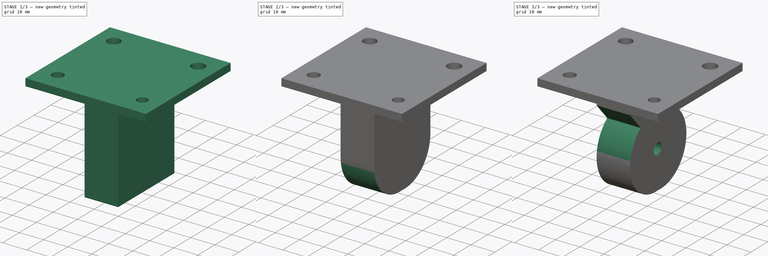
[diagram: build sequence overview — one tinted view per stage of 3, left to right]
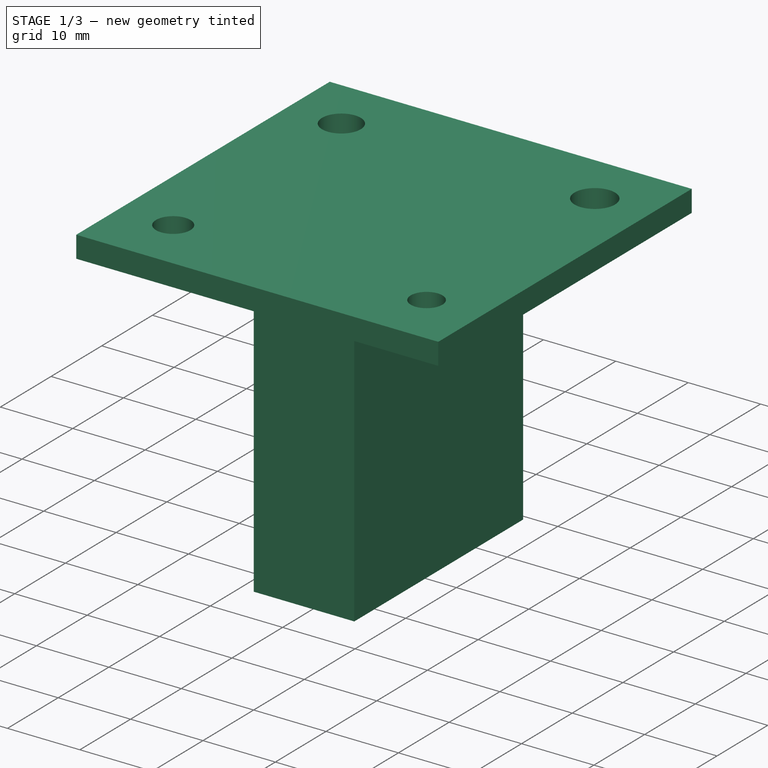
[diagram: stage 1 of 3 — iso view after this stage's code; geometry added in this stage tinted green]
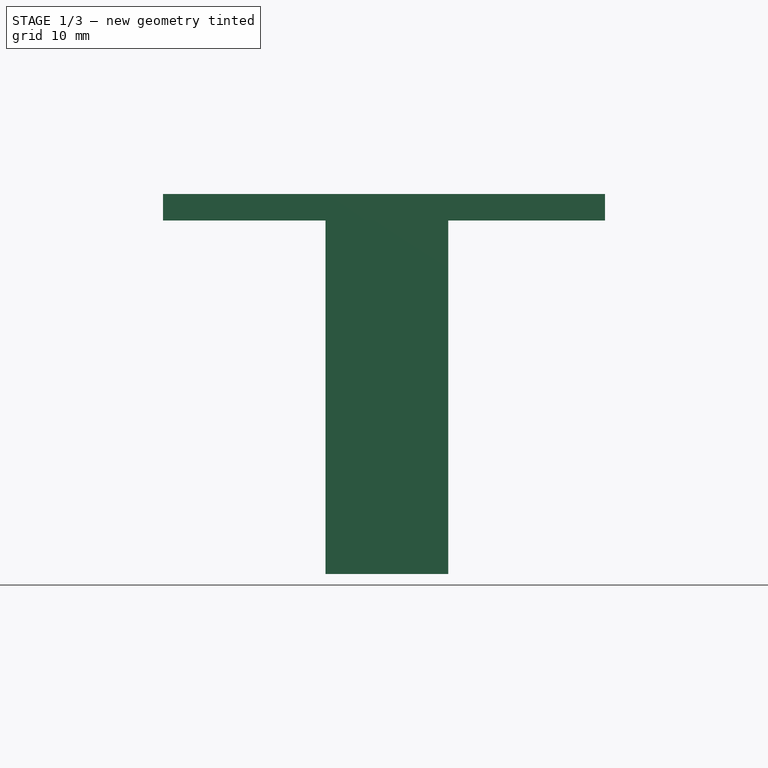
[diagram: stage 1 of 3 — front view after this stage's code; geometry added in this stage tinted green]
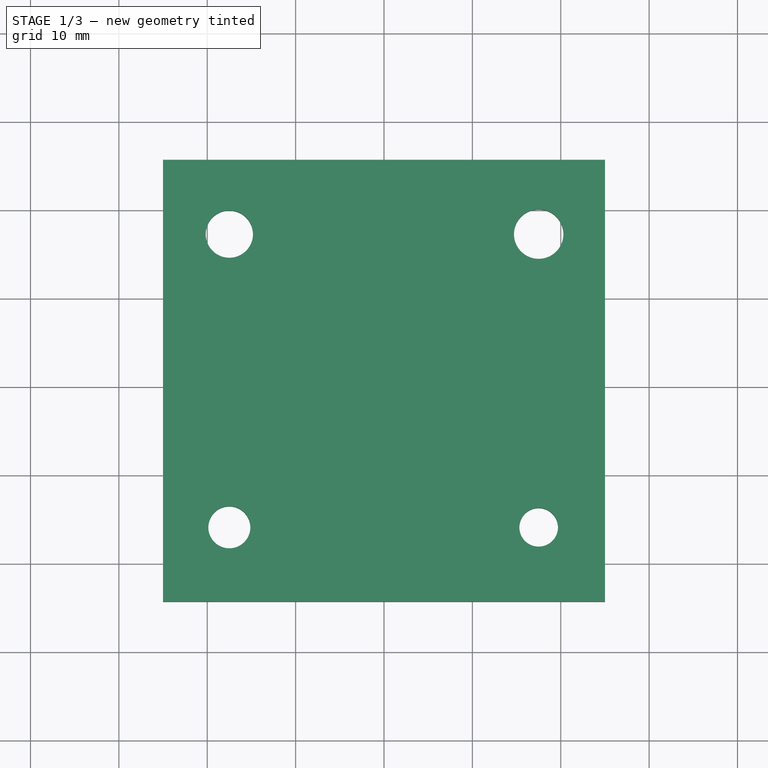
[diagram: stage 1 of 3 — top view after this stage's code; geometry added in this stage tinted green]
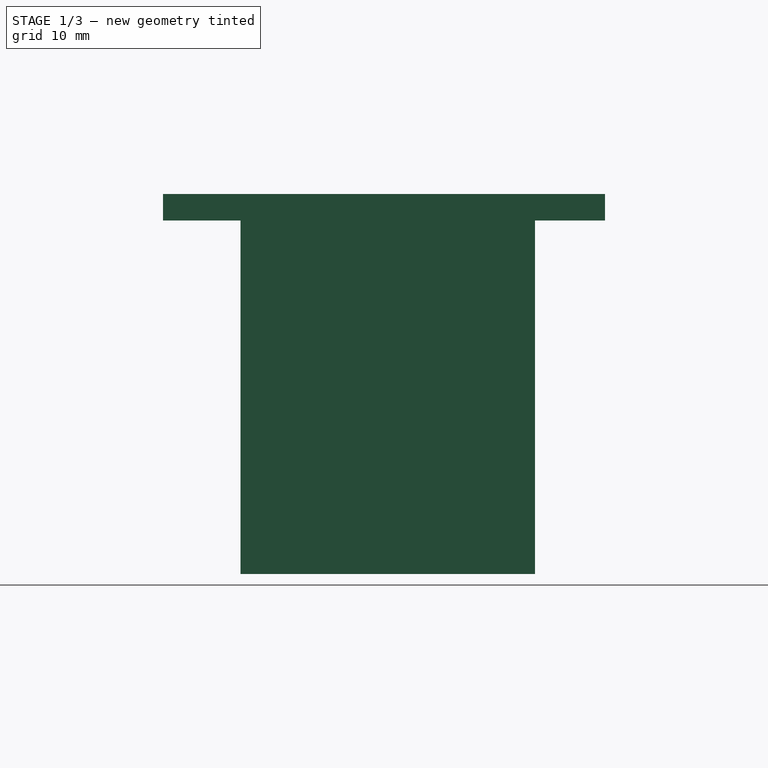
[diagram: stage 1 of 3 — right view after this stage's code; geometry added in this stage tinted green]
FCSTD DOCUMENT  (FreeCAD 0.20R29603 (Git))
Label: 1107_TrolleyWheel_30
License: All rights reserved
LicenseURL: http://en.wikipedia.org/wiki/All_rights_reserved
objects: Sketcher::SketchObject×4, PartDesign::Pad×2, PartDesign::Pocket×2, PartDesign::Fillet×1, PartDesign::Body×1
note: 15 computed .brp shape members not serialized (recipe doc carries the construction recipe); baked Part::Feature solids carry a one-line shape summary decoded from their .brp

FEATURE [Sketcher::SketchObject] Sketch
  FullyConstrained = false
  MapMode = 5
  Support = -> [XY_Plane]
  sketch-geometry (17):
    g0: LineSegment StartX=-25 StartY=25 StartZ=0 EndX=25 EndY=25 EndZ=0
    g1: LineSegment StartX=25 StartY=25 StartZ=0 EndX=25 EndY=-25 EndZ=0
    g2: LineSegment StartX=25 StartY=-25 StartZ=0 EndX=-25 EndY=-25 EndZ=0
    g3: LineSegment StartX=-25 StartY=-25 StartZ=0 EndX=-25 EndY=25 EndZ=0
    g4: LineSegment StartX=-25 StartY=-25 StartZ=0 EndX=0 EndY=0 EndZ=0
    g5: LineSegment StartX=0 StartY=0 StartZ=0 EndX=25 EndY=25 EndZ=0
    g6: LineSegment StartX=-25 StartY=25 StartZ=0 EndX=-17.5 EndY=16.5883 EndZ=0
    g7: LineSegment StartX=-17.5 StartY=16.5883 StartZ=0 EndX=17.5 EndY=-16.5883 EndZ=0
    g8: LineSegment StartX=17.5 StartY=-16.5883 StartZ=0 EndX=25 EndY=-25 EndZ=0
    g9: LineSegment StartX=-17.5 StartY=16.5883 StartZ=0 EndX=17.5 EndY=16.5883 EndZ=0
    g10: LineSegment StartX=17.5 StartY=16.5883 StartZ=0 EndX=17.5 EndY=-16.5883 EndZ=0
    g11: LineSegment StartX=17.5 StartY=-16.5883 StartZ=0 EndX=-17.5 EndY=-16.5883 EndZ=0
    g12: LineSegment StartX=-17.5 StartY=-16.5883 StartZ=0 EndX=-17.5 EndY=16.5883 EndZ=0
    g13: Circle CenterX=-17.5 CenterY=16.5883 CenterZ=0 NormalX=0 NormalY=0 NormalZ=1 AngleXU=0 Radius=2.67321
    g14: Circle CenterX=17.5 CenterY=16.5883 CenterZ=0 NormalX=0 NormalY=0 NormalZ=1 AngleXU=0 Radius=2.79599
    g15: Circle CenterX=17.5 CenterY=-16.5883 CenterZ=0 NormalX=0 NormalY=0 NormalZ=1 AngleXU=0 Radius=2.1845
    g16: Circle CenterX=-17.5 CenterY=-16.5883 CenterZ=0 NormalX=0 NormalY=0 NormalZ=1 AngleXU=0 Radius=2.37681
  constraints (36):
    c: Coincident(g0,g1)
    c: Coincident(g1,g2)
    c: Coincident(g2,g3)
    c: Coincident(g3,g0)
    c: Horizontal(g0)
    c: Horizontal(g2)
    c: Vertical(g1)
    c: Vertical(g3)
    c: DistanceY(g1,g1) = 50
    c: DistanceX(g2,g2) = 50
    c: Coincident(g4,g2)
    c: Coincident(g5,g4)
    c: Coincident(g5,g0)
    c: Equal(g4,g5)
    c: Parallel(g5,g4)
    c: Coincident(g4,g-1)
    c: Coincident(g6,g0)
    c: Coincident(g7,g6)
    c: Coincident(g8,g7)
    c: Coincident(g8,g1)
    c: Parallel(g6,g8)
    c: Equal(g8,g6)
    c: Coincident(g9,g10)
    c: Coincident(g10,g11)
    c: Coincident(g11,g12)
    c: Coincident(g12,g9)
    c: Horizontal(g9)
    c: Horizontal(g11)
    c: Vertical(g10)
    c: Vertical(g12)
    c: Coincident(g9,g6)
    c: Coincident(g10,g7)
    c: DistanceX(g9,g9) = 35
    c: Coincident(g13,g6)
    c: Coincident(g15,g7)
    c: Coincident(g16,g11)
FEATURE [PartDesign::Pad] Pad
  AllowMultiFace = false
  Direction = (1,1,1)
  Length = 3
  Length2 = 100
  Profile = -> Sketch
  Type = 0
FEATURE [Sketcher::SketchObject] Sketch001
  FullyConstrained = false
  MapMode = 5
  Placement = pos=(0,0,0) rot=(1,0,0;3.14159rad)
  Support = -> [Pad]
  sketch-geometry (4):
    g0: LineSegment StartX=-6.61789 StartY=16.2325 StartZ=0 EndX=7.26289 EndY=16.2325 EndZ=0
    g1: LineSegment StartX=7.26289 StartY=16.2325 StartZ=0 EndX=7.26289 EndY=-17.0813 EndZ=0
    g2: LineSegment StartX=7.26289 StartY=-17.0813 StartZ=0 EndX=-6.61789 EndY=-17.0813 EndZ=0
    g3: LineSegment StartX=-6.61789 StartY=-17.0813 StartZ=0 EndX=-6.61789 EndY=16.2325 EndZ=0
  constraints (8):
    c: Coincident(g0,g1)
    c: Coincident(g1,g2)
    c: Coincident(g2,g3)
    c: Coincident(g3,g0)
    c: Horizontal(g0)
    c: Horizontal(g2)
    c: Vertical(g1)
    c: Vertical(g3)
FEATURE [PartDesign::Pad] Pad001
  AllowMultiFace = false
  BaseFeature = -> Pad
  Direction = (0,0,-1)
  Length = 40
  Length2 = 100
  Profile = -> Sketch001
  Type = 0
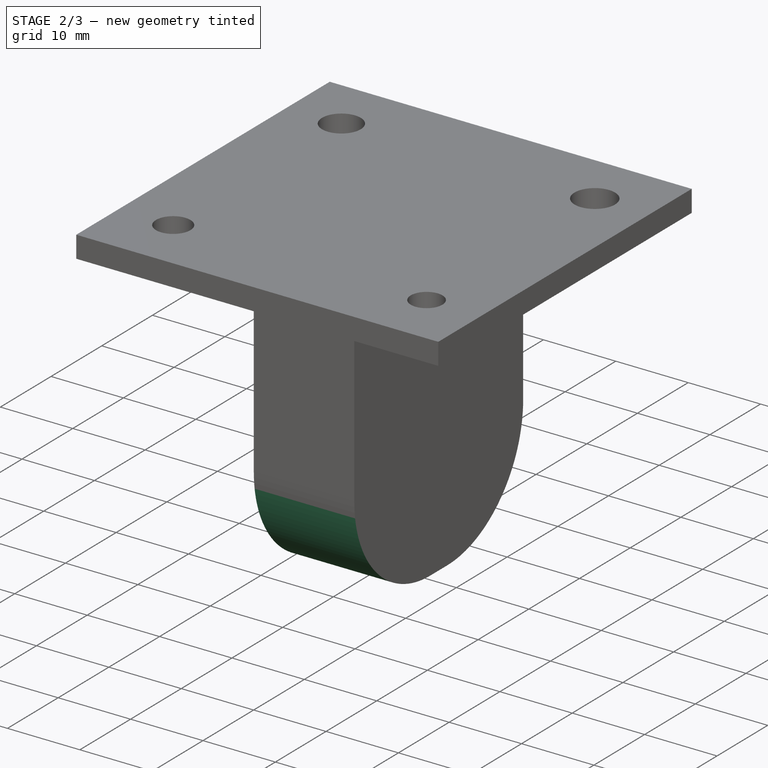
[diagram: stage 2 of 3 — iso view after this stage's code; geometry added in this stage tinted green]
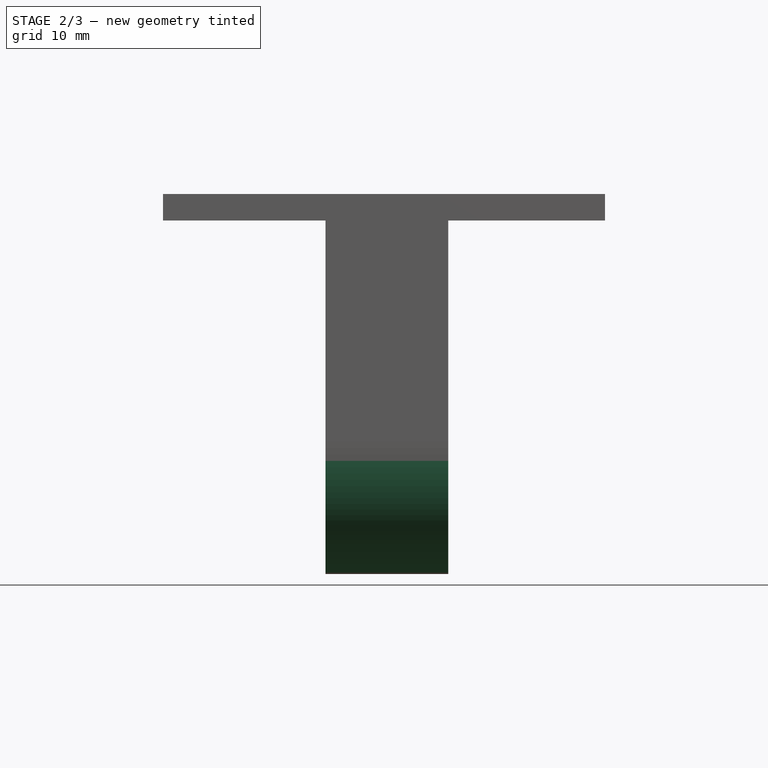
[diagram: stage 2 of 3 — front view after this stage's code; geometry added in this stage tinted green]
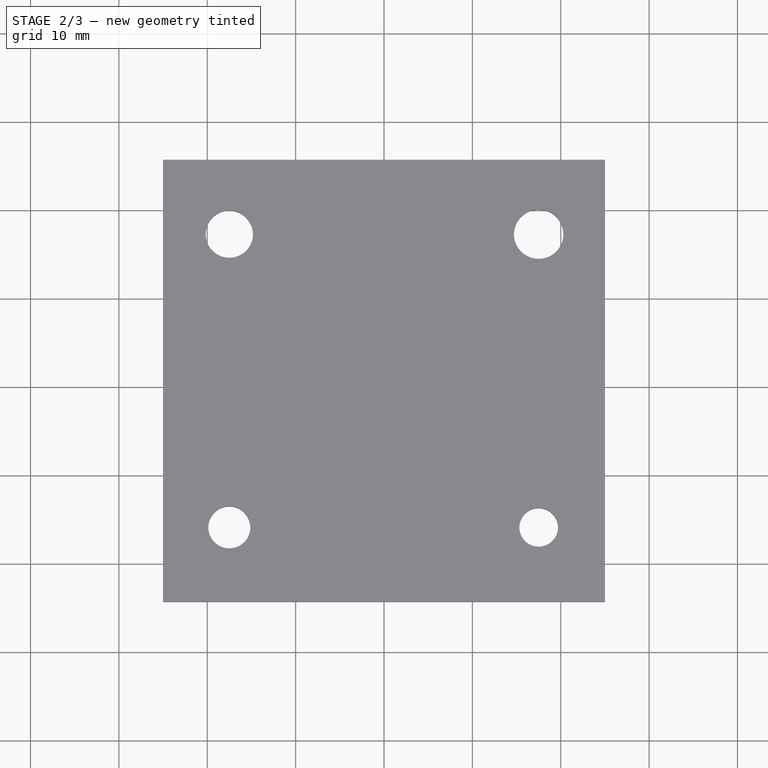
[diagram: stage 2 of 3 — top view after this stage's code; geometry added in this stage tinted green]
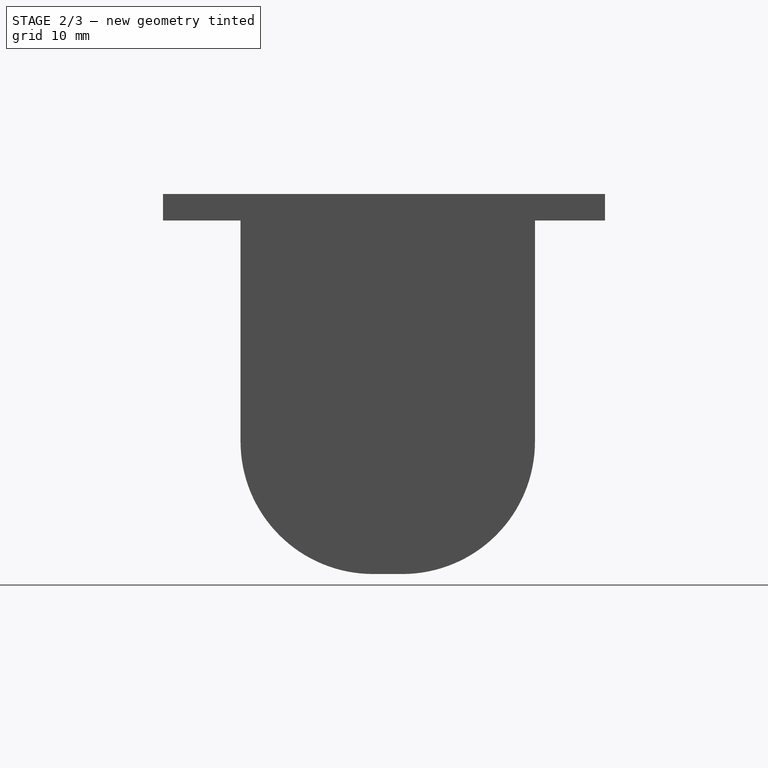
[diagram: stage 2 of 3 — right view after this stage's code; geometry added in this stage tinted green]
FEATURE [PartDesign::Fillet] Fillet
  Base = -> Pad001 [Edge34,Edge31]
  BaseFeature = -> Pad001
  Radius = 15
  SupportTransform = false
  UseAllEdges = false
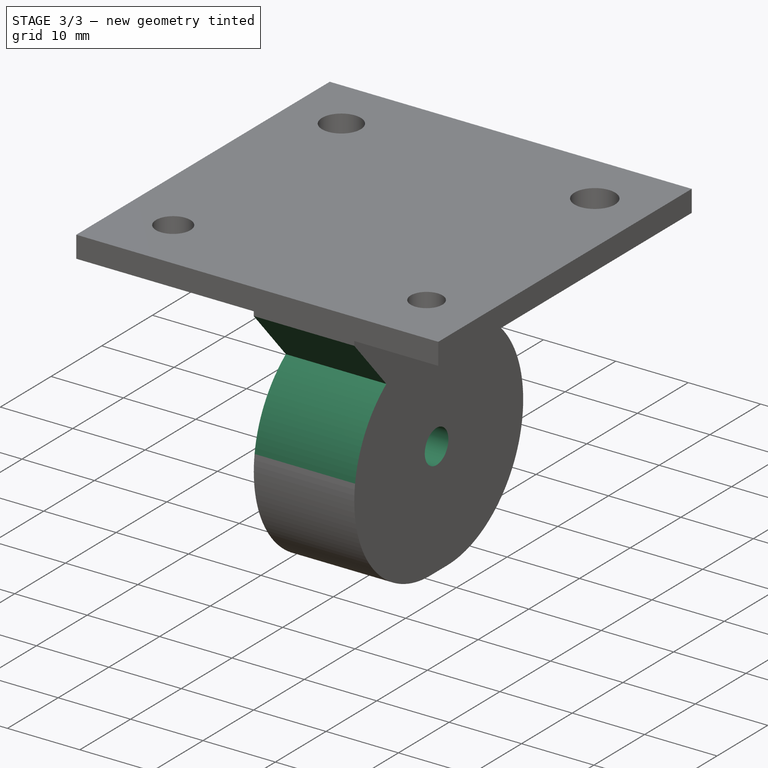
[diagram: stage 3 of 3 — iso view after this stage's code; geometry added in this stage tinted green]
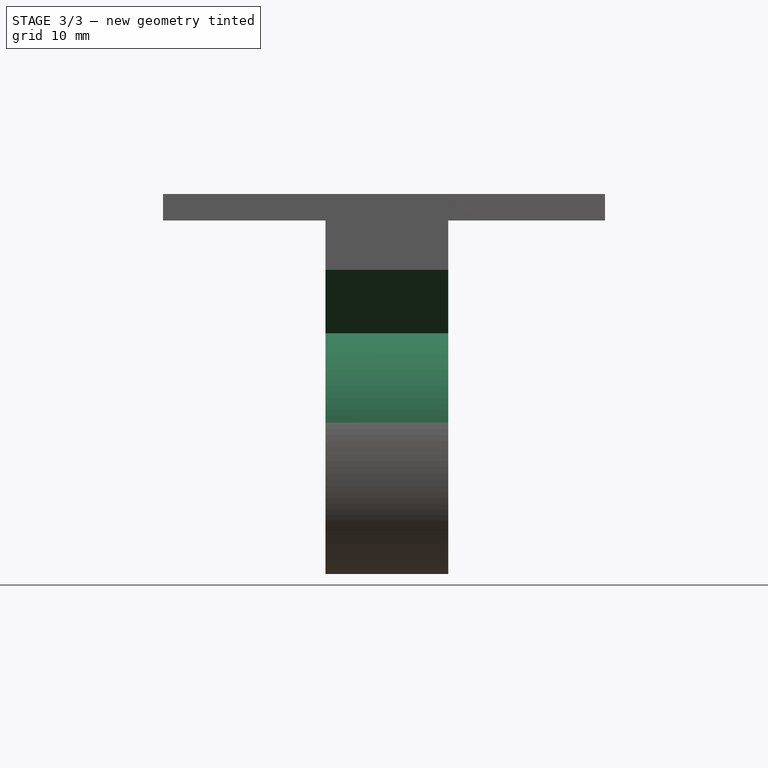
[diagram: stage 3 of 3 — front view after this stage's code; geometry added in this stage tinted green]
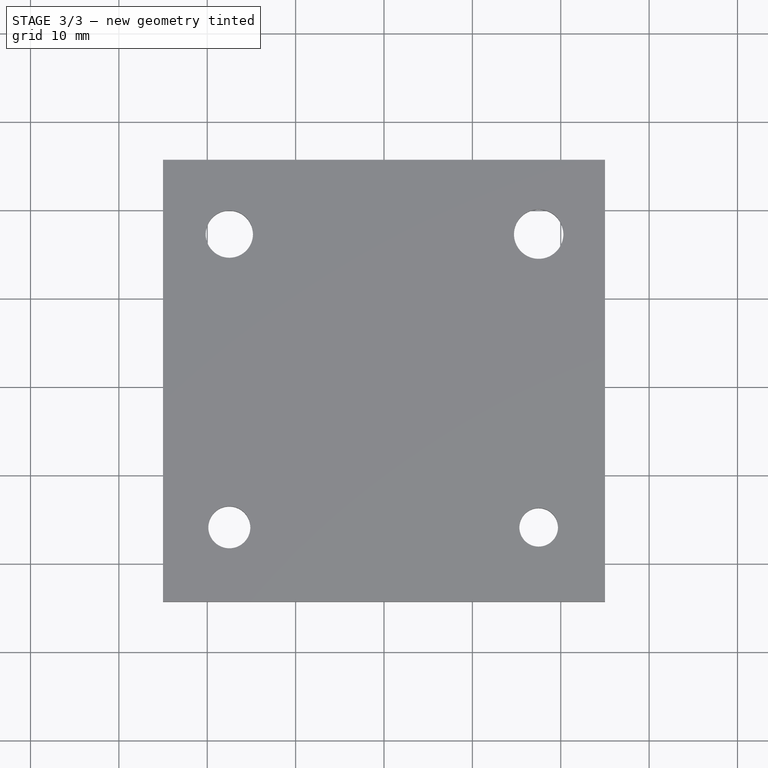
[diagram: stage 3 of 3 — top view after this stage's code; geometry added in this stage tinted green]
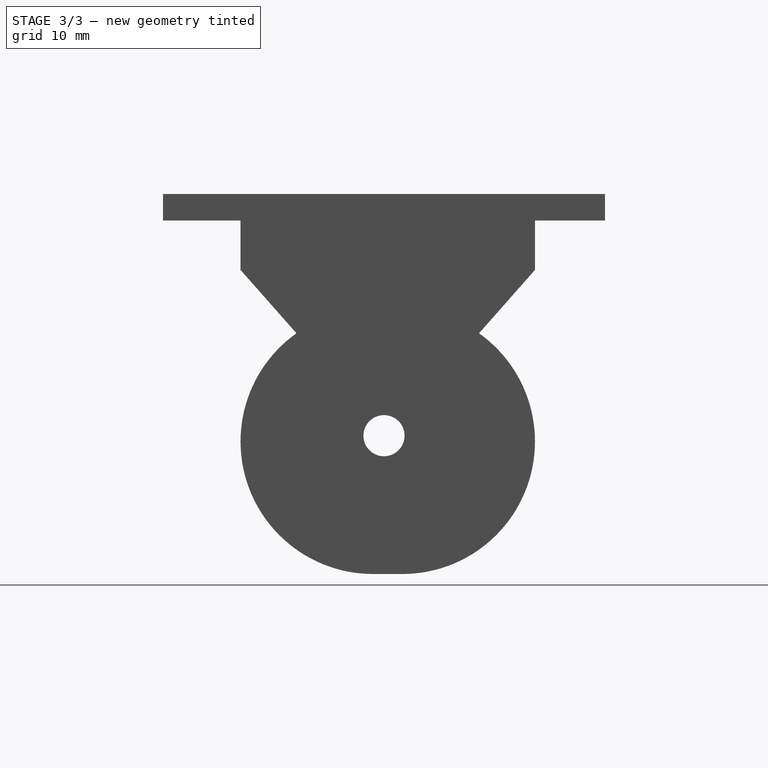
[diagram: stage 3 of 3 — right view after this stage's code; geometry added in this stage tinted green]
FEATURE [Sketcher::SketchObject] Sketch002
  ExternalGeometry = -> [Fillet]
  FullyConstrained = false
  MapMode = 5
  Placement = pos=(-6.61789,0,0) rot=(0.57735,-0.57735,-0.57735;2.0944rad)
  Support = -> [Fillet]
  sketch-geometry (6):
    g0: ArcOfCircle CenterX=1.23254 CenterY=-25 CenterZ=0 NormalX=0 NormalY=0 NormalZ=1 AngleXU=0 Radius=15 StartAngle=0 EndAngle=0.954406
    g1: ArcOfCircle CenterX=-2.08134 CenterY=-25 CenterZ=0 NormalX=0 NormalY=0 NormalZ=1 AngleXU=0 Radius=15 StartAngle=2.18719 EndAngle=3.14159
    g2: LineSegment StartX=9.90395 StartY=-12.7604 StartZ=0 EndX=16.2325 EndY=-5.59311 EndZ=0
    g3: LineSegment StartX=16.2325 StartY=-5.59311 StartZ=0 EndX=16.2325 EndY=-25 EndZ=0
    g4: LineSegment StartX=-10.7528 StartY=-12.7604 StartZ=0 EndX=-17.0813 EndY=-5.59311 EndZ=0
    g5: LineSegment StartX=-17.0813 StartY=-5.59311 StartZ=0 EndX=-17.0813 EndY=-25 EndZ=0
  constraints (11):
    c: Coincident(g0,g-3)
    c: Coincident(g0,g-6)
    c: Coincident(g1,g-4)
    c: Horizontal(g0,g1)
    c: Coincident(g2,g0)
    c: PointOnObject(g2,g-6)
    c: Coincident(g3,g2)
    c: Coincident(g3,g0)
    c: Coincident(g4,g1)
    c: Equal(g2,g4)
    c: Equal(g3,g5)
FEATURE [PartDesign::Pocket] Pocket
  BaseFeature = -> Fillet
  Direction = (1,0,0)
  Length = 5
  Length2 = 5
  Profile = -> Sketch002
  ReferenceAxis = -> Sketch002 [N_Axis]
  Type = 1
FEATURE [Sketcher::SketchObject] Sketch003
  FullyConstrained = false
  MapMode = 5
  Placement = pos=(7.26289,0,0) rot=(0.57735,0.57735,0.57735;2.0944rad)
  Support = -> [Pocket]
  sketch-geometry (1):
    g0: Circle CenterX=0 CenterY=-24.3464 CenterZ=0 NormalX=0 NormalY=0 NormalZ=1 AngleXU=0 Radius=2.32699
  constraints (1):
    c: PointOnObject(g0,g-2)
FEATURE [PartDesign::Pocket] Pocket001
  BaseFeature = -> Pocket
  Direction = (-1,0,0)
  Length = 5
  Length2 = 5
  Profile = -> Sketch003
  ReferenceAxis = -> Sketch003 [N_Axis]
  Type = 1
FEATURE [PartDesign::Body] Body
  Group = -> [Sketch,Pad,Sketch001,Pad001,Fillet,Sketch002,Pocket,Sketch003,Pocket001]
  Origin = -> Origin
  Tip = -> Pocket001
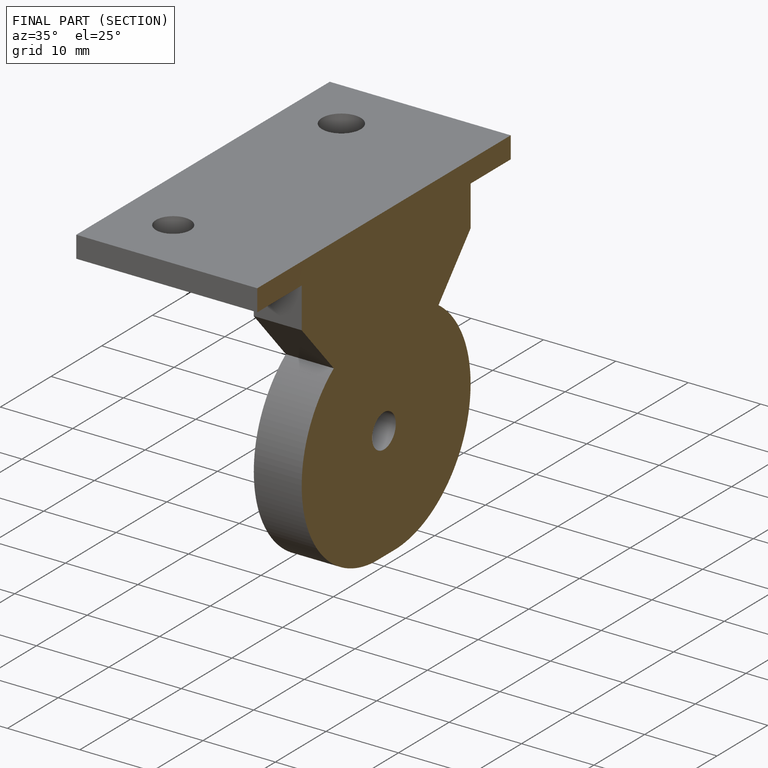
[diagram: finished part — half-section view (interior)]
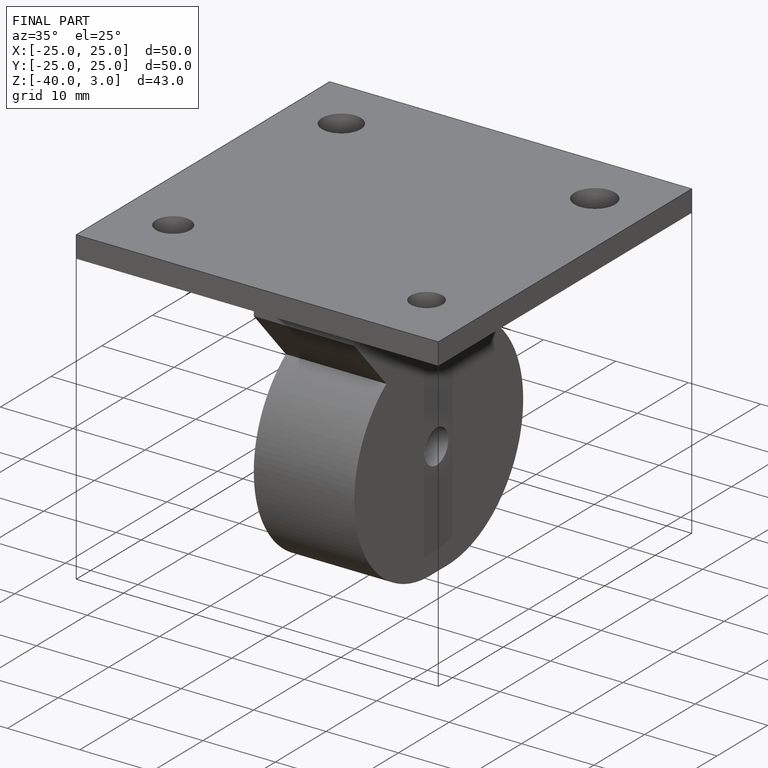
[diagram: finished part — iso view with bounding-box wireframe]
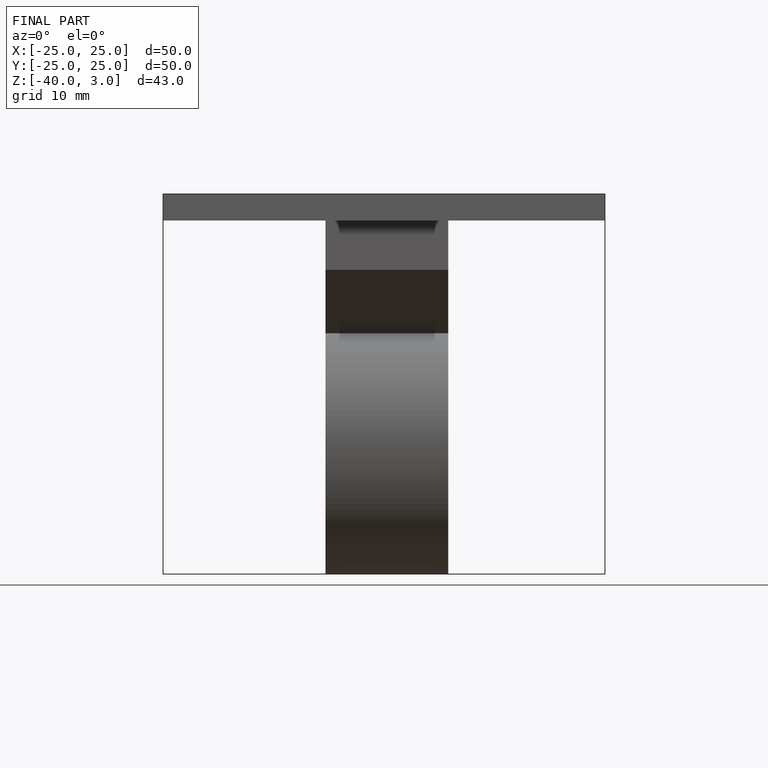
[diagram: finished part — front view with bounding-box wireframe]
